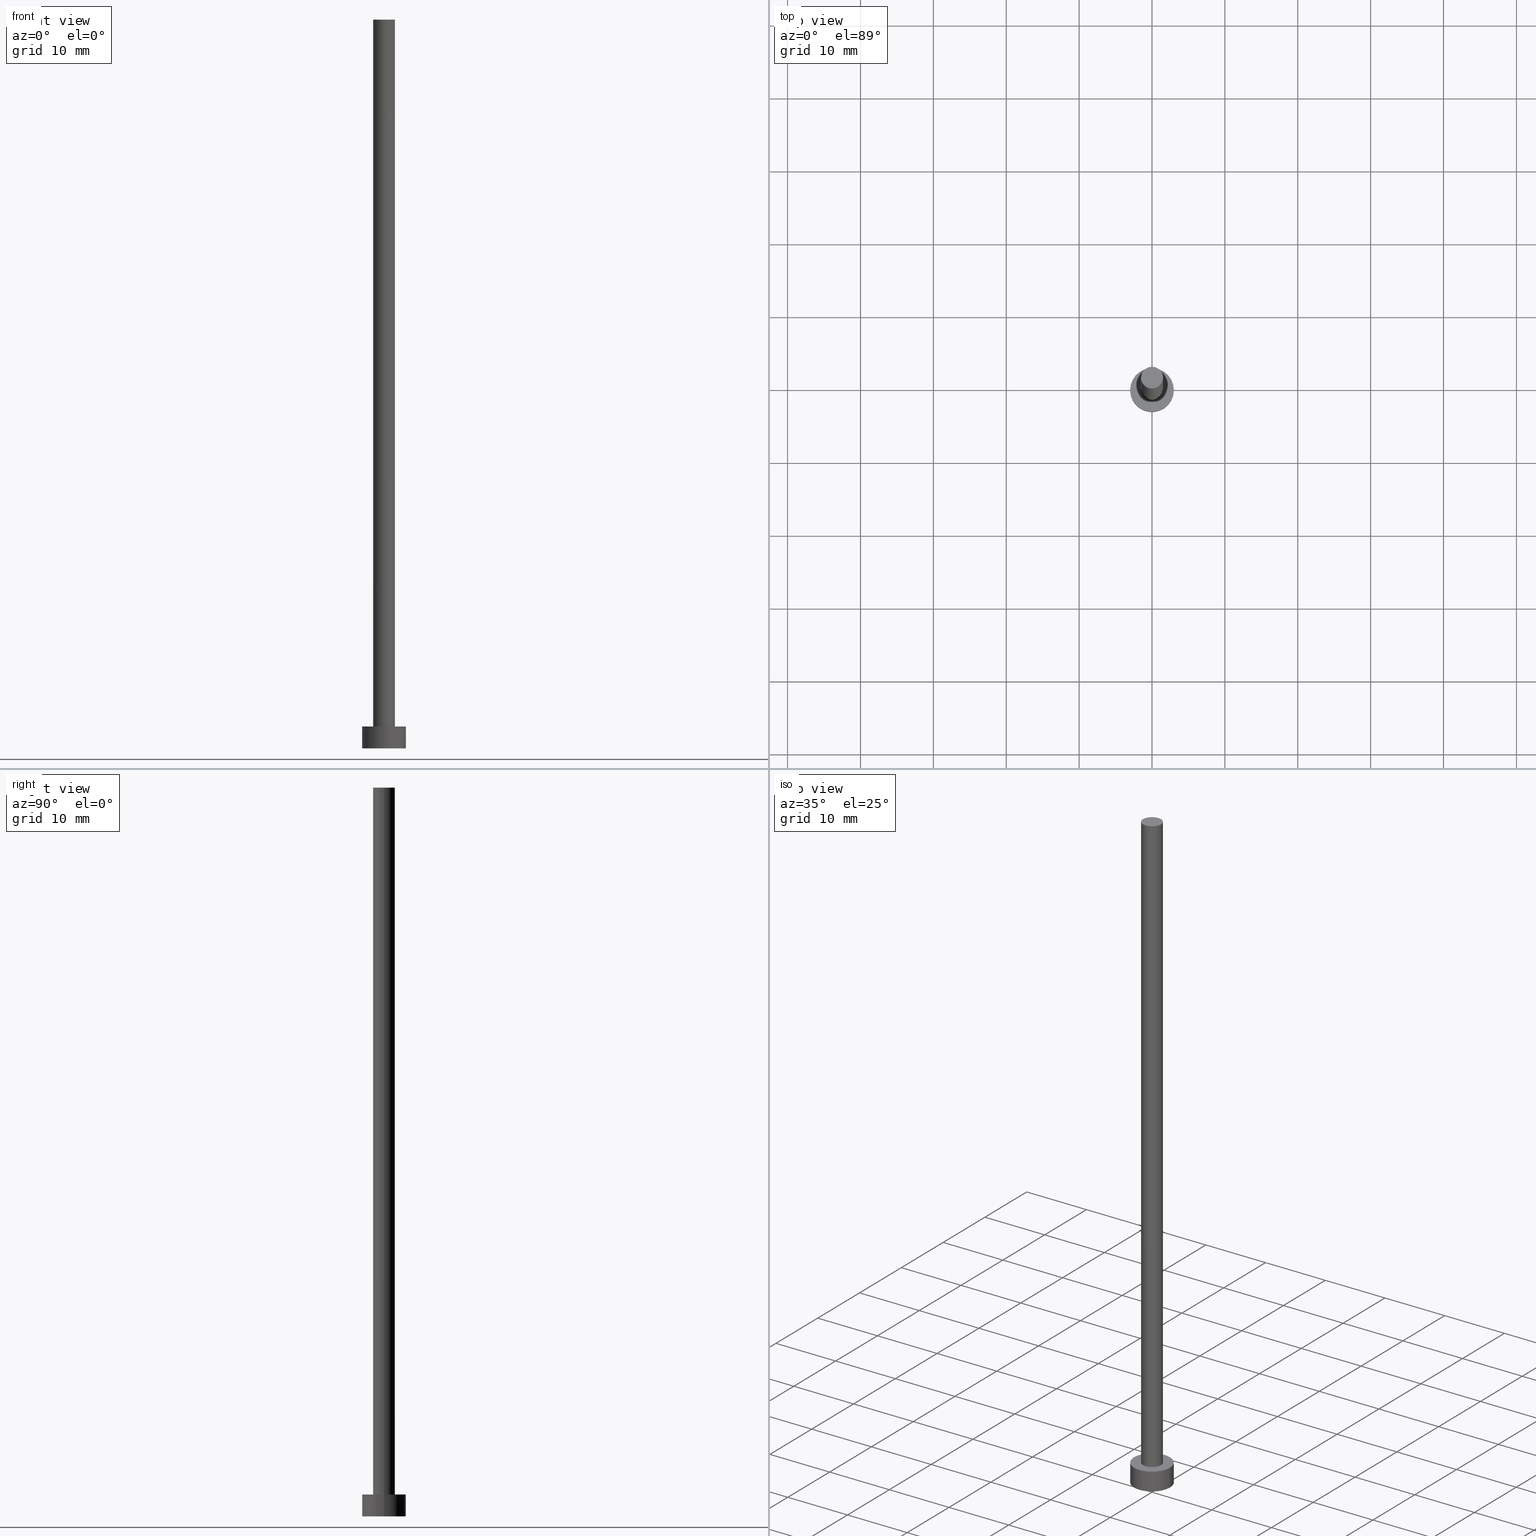
[diagram: canonical four-view strip — front | top / right | iso, engineering-drawing reading convention]
A machine part, canonical four-view strip (front | top / right | iso — engineering-drawing reading convention). The complete STEP part file that produces these views, byte-faithful:
ISO-10303-21;
HEADER;
FILE_DESCRIPTION (( 'STEP AP203' ),
    '1' );
FILE_NAME ('094d.STEP',
    '2023-02-12T12:47:52',
    ( '' ),
    ( '' ),
    'SwSTEP 2.0',
    'SolidWorks 2019',
    '' );
FILE_SCHEMA (( 'CONFIG_CONTROL_DESIGN' ));
ENDSEC;

DATA;
#1 = DIRECTION ( 'NONE',  ( -0.000000000000000000, -0.000000000000000000, -1.000000000000000000 ) ) ;
#2 = DIRECTION ( 'NONE',  ( -0.000000000000000000, -0.000000000000000000, -1.000000000000000000 ) ) ;
#3 = CARTESIAN_POINT ( 'NONE',  ( 1.500000000000000222, 1.836970198721029934E-16, 3.000000000000000000 ) ) ;
#4 = CARTESIAN_POINT ( 'NONE',  ( 0.000000000000000000, 0.000000000000000000, 100.0000000000000000 ) ) ;
#5 = DIRECTION ( 'NONE',  ( -1.000000000000000000, 0.000000000000000000, 0.000000000000000000 ) ) ;
#6 = ORIENTED_EDGE ( 'NONE', *, *, #250, .T. ) ;
#7 = VERTEX_POINT ( 'NONE', #3 ) ;
#8 = CC_DESIGN_DATE_AND_TIME_ASSIGNMENT ( #37, #108, ( #140 ) ) ;
#9 = ORIENTED_EDGE ( 'NONE', *, *, #158, .F. ) ;
#10 = AXIS2_PLACEMENT_3D ( 'NONE', #21, #99, #254 ) ;
#11 = ORIENTED_EDGE ( 'NONE', *, *, #66, .F. ) ;
#12 = PERSON_AND_ORGANIZATION ( #170, #155 ) ;
#13 = APPROVAL_PERSON_ORGANIZATION ( #50, #130, #215 ) ;
#14 = EDGE_CURVE ( 'NONE', #147, #7, #214, .T. ) ;
#15 = DATE_AND_TIME ( #134, #142 ) ;
#16 = LOCAL_TIME ( 13, 47, 52.00000000000000000, #55 ) ;
#17 = DIRECTION ( 'NONE',  ( 1.000000000000000000, 0.000000000000000000, 0.000000000000000000 ) ) ;
#18 = EDGE_CURVE ( 'NONE', #7, #166, #221, .T. ) ;
#19 = CARTESIAN_POINT ( 'NONE',  ( 1.500000000000000222, 1.836970198721029934E-16, 100.0000000000000000 ) ) ;
#20 = CIRCLE ( 'NONE', #252, 3.000000000000000444 ) ;
#21 = CARTESIAN_POINT ( 'NONE',  ( 0.000000000000000000, 0.000000000000000000, 3.000000000000000000 ) ) ;
#22 = FACE_OUTER_BOUND ( 'NONE', #105, .T. ) ;
#23 = PLANE ( 'NONE',  #40 ) ;
#24 = DIRECTION ( 'NONE',  ( 0.000000000000000000, 0.000000000000000000, 1.000000000000000000 ) ) ;
#25 = CARTESIAN_POINT ( 'NONE',  ( 0.000000000000000000, 0.000000000000000000, 100.0000000000000000 ) ) ;
#26 = CIRCLE ( 'NONE', #253, 3.000000000000000444 ) ;
#27 = DIRECTION ( 'NONE',  ( -0.000000000000000000, -0.000000000000000000, -1.000000000000000000 ) ) ;
#28 = ADVANCED_FACE ( 'NONE', ( #67 ), #183, .T. ) ;
#29 = DIRECTION ( 'NONE',  ( -1.000000000000000000, 0.000000000000000000, 0.000000000000000000 ) ) ;
#30 = EDGE_LOOP ( 'NONE', ( #39, #35 ) ) ;
#31 = ORIENTED_EDGE ( 'NONE', *, *, #172, .F. ) ;
#32 = ORIENTED_EDGE ( 'NONE', *, *, #77, .T. ) ;
#33 = CALENDAR_DATE ( 2023, 12, 2 ) ;
#34 = VECTOR ( 'NONE', #150, 1000.000000000000000 ) ;
#35 = ORIENTED_EDGE ( 'NONE', *, *, #104, .F. ) ;
#36 = LOCAL_TIME ( 13, 47, 52.00000000000000000, #78 ) ;
#37 = DATE_AND_TIME ( #89, #36 ) ;
#38 = APPROVAL ( #209, 'NEUR�EN�' ) ;
#39 = ORIENTED_EDGE ( 'NONE', *, *, #159, .F. ) ;
#40 = AXIS2_PLACEMENT_3D ( 'NONE', #135, #156, #157 ) ;
#41 = PRODUCT ( '094d', '094d', '', ( #237 ) ) ;
#42 = CC_DESIGN_PERSON_AND_ORGANIZATION_ASSIGNMENT ( #12, #245, ( #140 ) ) ;
#43 = DIRECTION ( 'NONE',  ( 0.000000000000000000, 0.000000000000000000, 1.000000000000000000 ) ) ;
#44 = CARTESIAN_POINT ( 'NONE',  ( 0.000000000000000000, 0.000000000000000000, 3.000000000000000000 ) ) ;
#45 = ADVANCED_FACE ( 'NONE', ( #68 ), #23, .F. ) ;
#46 = PERSON_AND_ORGANIZATION_ROLE ( 'design_owner' ) ;
#47 = CARTESIAN_POINT ( 'NONE',  ( 3.000000000000000444, 3.673940397442060361E-16, 3.000000000000000000 ) ) ;
#48 = CC_DESIGN_PERSON_AND_ORGANIZATION_ASSIGNMENT ( #227, #220, ( #154 ) ) ;
#49 = AXIS2_PLACEMENT_3D ( 'NONE', #71, #136, #182 ) ;
#50 = PERSON_AND_ORGANIZATION ( #170, #155 ) ;
#51 = APPLICATION_CONTEXT ( 'configuration controlled 3d designs of mechanical parts and assemblies' ) ;
#52 = DATE_TIME_ROLE ( 'creation_date' ) ;
#53 = AXIS2_PLACEMENT_3D ( 'NONE', #61, #65, #110 ) ;
#54 = CC_DESIGN_SECURITY_CLASSIFICATION ( #140, ( #107 ) ) ;
#55 = COORDINATED_UNIVERSAL_TIME_OFFSET ( 1, 0, .AHEAD. ) ;
#56 = ORIENTED_EDGE ( 'NONE', *, *, #92, .F. ) ;
#57 = DATE_AND_TIME ( #33, #123 ) ;
#58 = CIRCLE ( 'NONE', #53, 3.000000000000000444 ) ;
#59 = ORIENTED_EDGE ( 'NONE', *, *, #159, .T. ) ;
#60 = SHAPE_DEFINITION_REPRESENTATION ( #173, #125 ) ;
#61 = CARTESIAN_POINT ( 'NONE',  ( 0.000000000000000000, 0.000000000000000000, 0.000000000000000000 ) ) ;
#62 = CC_DESIGN_DATE_AND_TIME_ASSIGNMENT ( #57, #52, ( #154 ) ) ;
#63 = CARTESIAN_POINT ( 'NONE',  ( -1.500000000000000222, 0.000000000000000000, 3.000000000000000000 ) ) ;
#64 = AXIS2_PLACEMENT_3D ( 'NONE', #184, #24, #255 ) ;
#65 = DIRECTION ( 'NONE',  ( 0.000000000000000000, 0.000000000000000000, 1.000000000000000000 ) ) ;
#66 = EDGE_CURVE ( 'NONE', #186, #166, #216, .T. ) ;
#67 = FACE_OUTER_BOUND ( 'NONE', #129, .T. ) ;
#68 = FACE_OUTER_BOUND ( 'NONE', #30, .T. ) ;
#69 = APPROVAL_STATUS ( 'not_yet_approved' ) ;
#70 = CARTESIAN_POINT ( 'NONE',  ( 0.000000000000000000, 0.000000000000000000, 100.0000000000000000 ) ) ;
#71 = CARTESIAN_POINT ( 'NONE',  ( 0.000000000000000000, 0.000000000000000000, 100.0000000000000000 ) ) ;
#72 = LINE ( 'NONE', #47, #94 ) ;
#73 = ORIENTED_EDGE ( 'NONE', *, *, #92, .T. ) ;
#74 = CALENDAR_DATE ( 2023, 12, 2 ) ;
#75 = ORIENTED_EDGE ( 'NONE', *, *, #158, .T. ) ;
#76 = EDGE_LOOP ( 'NONE', ( #31, #143 ) ) ;
#77 = EDGE_CURVE ( 'NONE', #188, #127, #72, .T. ) ;
#78 = COORDINATED_UNIVERSAL_TIME_OFFSET ( 1, 0, .AHEAD. ) ;
#79 = DIRECTION ( 'NONE',  ( 1.000000000000000000, 0.000000000000000000, -0.000000000000000000 ) ) ;
#80 = COORDINATED_UNIVERSAL_TIME_OFFSET ( 1, 0, .AHEAD. ) ;
#81 = DIRECTION ( 'NONE',  ( 1.000000000000000000, 0.000000000000000000, 0.000000000000000000 ) ) ;
#82 = CARTESIAN_POINT ( 'NONE',  ( 0.000000000000000000, 0.000000000000000000, 100.0000000000000000 ) ) ;
#83 = DIRECTION ( 'NONE',  ( 0.000000000000000000, 0.000000000000000000, 1.000000000000000000 ) ) ;
#84 = APPLICATION_PROTOCOL_DEFINITION ( 'international standard', 'config_control_design', 1994, #51 ) ;
#85 = APPROVAL ( #122, 'NEUR�EN�' ) ;
#86 = DIRECTION ( 'NONE',  ( 0.000000000000000000, 0.000000000000000000, 1.000000000000000000 ) ) ;
#87 =( NAMED_UNIT ( * ) SI_UNIT ( $, .STERADIAN. ) SOLID_ANGLE_UNIT ( ) );
#88 =( LENGTH_UNIT ( ) NAMED_UNIT ( * ) SI_UNIT ( .MILLI., .METRE. ) );
#89 = CALENDAR_DATE ( 2023, 12, 2 ) ;
#90 = APPROVAL_DATE_TIME ( #128, #85 ) ;
#91 = ADVANCED_FACE ( 'NONE', ( #234 ), #218, .T. ) ;
#92 = EDGE_CURVE ( 'NONE', #188, #222, #210, .T. ) ;
#93 = ORIENTED_EDGE ( 'NONE', *, *, #103, .F. ) ;
#94 = VECTOR ( 'NONE', #1, 1000.000000000000000 ) ;
#95 = FACE_BOUND ( 'NONE', #76, .T. ) ;
#96 = PERSON_AND_ORGANIZATION ( #170, #155 ) ;
#97 = CIRCLE ( 'NONE', #190, 1.500000000000000222 ) ;
#98 = APPLICATION_CONTEXT ( 'configuration controlled 3d designs of mechanical parts and assemblies' ) ;
#99 = DIRECTION ( 'NONE',  ( 0.000000000000000000, 0.000000000000000000, 1.000000000000000000 ) ) ;
#100 = CYLINDRICAL_SURFACE ( 'NONE', #153, 3.000000000000000444 ) ;
#101 = CARTESIAN_POINT ( 'NONE',  ( -1.500000000000000222, 0.000000000000000000, 100.0000000000000000 ) ) ;
#102 = CARTESIAN_POINT ( 'NONE',  ( 0.000000000000000000, 0.000000000000000000, 3.000000000000000000 ) ) ;
#103 = EDGE_CURVE ( 'NONE', #186, #147, #97, .T. ) ;
#104 = EDGE_CURVE ( 'NONE', #127, #226, #20, .T. ) ;
#105 = EDGE_LOOP ( 'NONE', ( #241, #146, #75, #59 ) ) ;
#106 = EDGE_LOOP ( 'NONE', ( #208, #6 ) ) ;
#107 = PRODUCT_DEFINITION_FORMATION_WITH_SPECIFIED_SOURCE ( 'LIBOVOLN�', '', #41, .NOT_KNOWN. ) ;
#108 = DATE_TIME_ROLE ( 'classification_date' ) ;
#109 = ORIENTED_EDGE ( 'NONE', *, *, #14, .T. ) ;
#110 = DIRECTION ( 'NONE',  ( 1.000000000000000000, 0.000000000000000000, 0.000000000000000000 ) ) ;
#111 = APPROVAL_ROLE ( '' ) ;
#112 = PLANE ( 'NONE',  #139 ) ;
#113 = DIRECTION ( 'NONE',  ( -1.000000000000000000, 0.000000000000000000, 0.000000000000000000 ) ) ;
#114 = CARTESIAN_POINT ( 'NONE',  ( 3.000000000000000444, 3.673940397442060361E-16, 0.000000000000000000 ) ) ;
#115 = DIRECTION ( 'NONE',  ( 1.000000000000000000, 0.000000000000000000, 0.000000000000000000 ) ) ;
#116 = CARTESIAN_POINT ( 'NONE',  ( 0.000000000000000000, 0.000000000000000000, 3.000000000000000000 ) ) ;
#117 = DIRECTION ( 'NONE',  ( 1.000000000000000000, 0.000000000000000000, -0.000000000000000000 ) ) ;
#118 = APPROVAL_PERSON_ORGANIZATION ( #225, #85, #204 ) ;
#119 = CARTESIAN_POINT ( 'NONE',  ( -3.000000000000000444, 0.000000000000000000, 0.000000000000000000 ) ) ;
#120 = ADVANCED_FACE ( 'NONE', ( #95, #248 ), #112, .T. ) ;
#121 = CARTESIAN_POINT ( 'NONE',  ( -3.000000000000000444, 0.000000000000000000, 3.000000000000000000 ) ) ;
#122 = APPROVAL_STATUS ( 'not_yet_approved' ) ;
#123 = LOCAL_TIME ( 13, 47, 52.00000000000000000, #243 ) ;
#124 = ORIENTED_EDGE ( 'NONE', *, *, #14, .F. ) ;
#125 = ADVANCED_BREP_SHAPE_REPRESENTATION ( '094d', ( #217, #64 ), #131 ) ;
#126 = PERSON_AND_ORGANIZATION_ROLE ( 'creator' ) ;
#127 = VERTEX_POINT ( 'NONE', #114 ) ;
#128 = DATE_AND_TIME ( #187, #16 ) ;
#129 = EDGE_LOOP ( 'NONE', ( #56, #32, #228, #9 ) ) ;
#130 = APPROVAL ( #69, 'NEUR�EN�' ) ;
#131 =( GEOMETRIC_REPRESENTATION_CONTEXT ( 3 ) GLOBAL_UNCERTAINTY_ASSIGNED_CONTEXT ( ( #174 ) ) GLOBAL_UNIT_ASSIGNED_CONTEXT ( ( #88, #235, #87 ) ) REPRESENTATION_CONTEXT ( 'NONE', 'WORKASPACE' ) );
#132 = CC_DESIGN_PERSON_AND_ORGANIZATION_ASSIGNMENT ( #246, #167, ( #107 ) ) ;
#133 = DIRECTION ( 'NONE',  ( 0.000000000000000000, 0.000000000000000000, 1.000000000000000000 ) ) ;
#134 = CALENDAR_DATE ( 2023, 12, 2 ) ;
#135 = CARTESIAN_POINT ( 'NONE',  ( 0.000000000000000000, 0.000000000000000000, 0.000000000000000000 ) ) ;
#136 = DIRECTION ( 'NONE',  ( 0.000000000000000000, 0.000000000000000000, 1.000000000000000000 ) ) ;
#137 = CARTESIAN_POINT ( 'NONE',  ( 1.500000000000000222, 1.836970198721029934E-16, 100.0000000000000000 ) ) ;
#138 = DIRECTION ( 'NONE',  ( -0.000000000000000000, -0.000000000000000000, -1.000000000000000000 ) ) ;
#139 = AXIS2_PLACEMENT_3D ( 'NONE', #148, #249, #79 ) ;
#140 = SECURITY_CLASSIFICATION ( '', '', #207 ) ;
#141 = PLANE ( 'NONE',  #152 ) ;
#142 = LOCAL_TIME ( 13, 47, 52.00000000000000000, #80 ) ;
#143 = ORIENTED_EDGE ( 'NONE', *, *, #18, .F. ) ;
#144 = AXIS2_PLACEMENT_3D ( 'NONE', #44, #195, #113 ) ;
#145 = LOCAL_TIME ( 13, 47, 52.00000000000000000, #202 ) ;
#146 = ORIENTED_EDGE ( 'NONE', *, *, #224, .F. ) ;
#147 = VERTEX_POINT ( 'NONE', #19 ) ;
#148 = CARTESIAN_POINT ( 'NONE',  ( 0.000000000000000000, 0.000000000000000000, 3.000000000000000000 ) ) ;
#149 = CARTESIAN_POINT ( 'NONE',  ( -1.500000000000000222, 0.000000000000000000, 100.0000000000000000 ) ) ;
#150 = DIRECTION ( 'NONE',  ( -0.000000000000000000, -0.000000000000000000, -1.000000000000000000 ) ) ;
#151 = AXIS2_PLACEMENT_3D ( 'NONE', #70, #178, #200 ) ;
#152 = AXIS2_PLACEMENT_3D ( 'NONE', #25, #185, #117 ) ;
#153 = AXIS2_PLACEMENT_3D ( 'NONE', #199, #27, #5 ) ;
#154 = PRODUCT_DEFINITION ( 'NEZN�M�', '', #107, #232 ) ;
#155 = ORGANIZATION ( 'NEUR�EN�', 'NEUR�EN�', '' ) ;
#156 = DIRECTION ( 'NONE',  ( 0.000000000000000000, 0.000000000000000000, 1.000000000000000000 ) ) ;
#157 = DIRECTION ( 'NONE',  ( 1.000000000000000000, 0.000000000000000000, -0.000000000000000000 ) ) ;
#158 = EDGE_CURVE ( 'NONE', #222, #226, #197, .T. ) ;
#159 = EDGE_CURVE ( 'NONE', #226, #127, #58, .T. ) ;
#160 = ORIENTED_EDGE ( 'NONE', *, *, #66, .T. ) ;
#161 = PERSON_AND_ORGANIZATION ( #170, #155 ) ;
#162 = ORIENTED_EDGE ( 'NONE', *, *, #172, .T. ) ;
#163 = CC_DESIGN_APPROVAL ( #38, ( #140 ) ) ;
#164 = DATE_AND_TIME ( #74, #145 ) ;
#165 = AXIS2_PLACEMENT_3D ( 'NONE', #193, #133, #17 ) ;
#166 = VERTEX_POINT ( 'NONE', #63 ) ;
#167 = PERSON_AND_ORGANIZATION_ROLE ( 'design_supplier' ) ;
#168 = VECTOR ( 'NONE', #138, 1000.000000000000000 ) ;
#169 = APPROVAL_DATE_TIME ( #15, #38 ) ;
#170 = PERSON ( 'NEUR�EN�', 'NEUR�EN�', 'NEUR�EN�', ('NEUR�EN�'), ('NEUR�EN�'), ('NEUR�EN�') ) ;
#171 = CARTESIAN_POINT ( 'NONE',  ( 0.000000000000000000, 0.000000000000000000, 0.000000000000000000 ) ) ;
#172 = EDGE_CURVE ( 'NONE', #166, #7, #177, .T. ) ;
#173 = PRODUCT_DEFINITION_SHAPE ( 'NONE', 'NONE',  #154 ) ;
#174 = UNCERTAINTY_MEASURE_WITH_UNIT (LENGTH_MEASURE( 1.000000000000000082E-05 ), #88, 'distance_accuracy_value', 'NONE');
#175 = DIRECTION ( 'NONE',  ( 0.000000000000000000, 0.000000000000000000, 1.000000000000000000 ) ) ;
#176 = APPROVAL_PERSON_ORGANIZATION ( #96, #38, #111 ) ;
#177 = CIRCLE ( 'NONE', #165, 1.500000000000000222 ) ;
#178 = DIRECTION ( 'NONE',  ( -0.000000000000000000, -0.000000000000000000, -1.000000000000000000 ) ) ;
#179 = VECTOR ( 'NONE', #180, 1000.000000000000000 ) ;
#180 = DIRECTION ( 'NONE',  ( -0.000000000000000000, -0.000000000000000000, -1.000000000000000000 ) ) ;
#181 = CC_DESIGN_APPROVAL ( #130, ( #154 ) ) ;
#182 = DIRECTION ( 'NONE',  ( 1.000000000000000000, 0.000000000000000000, 0.000000000000000000 ) ) ;
#183 = CYLINDRICAL_SURFACE ( 'NONE', #144, 3.000000000000000444 ) ;
#184 = CARTESIAN_POINT ( 'NONE',  ( 0.000000000000000000, 0.000000000000000000, 0.000000000000000000 ) ) ;
#185 = DIRECTION ( 'NONE',  ( 0.000000000000000000, 0.000000000000000000, 1.000000000000000000 ) ) ;
#186 = VERTEX_POINT ( 'NONE', #149 ) ;
#187 = CALENDAR_DATE ( 2023, 12, 2 ) ;
#188 = VERTEX_POINT ( 'NONE', #231 ) ;
#189 = ORIENTED_EDGE ( 'NONE', *, *, #224, .T. ) ;
#190 = AXIS2_PLACEMENT_3D ( 'NONE', #82, #175, #81 ) ;
#191 = CIRCLE ( 'NONE', #49, 1.500000000000000222 ) ;
#192 = EDGE_LOOP ( 'NONE', ( #189, #73 ) ) ;
#193 = CARTESIAN_POINT ( 'NONE',  ( 0.000000000000000000, 0.000000000000000000, 3.000000000000000000 ) ) ;
#194 = FACE_OUTER_BOUND ( 'NONE', #106, .T. ) ;
#195 = DIRECTION ( 'NONE',  ( -0.000000000000000000, -0.000000000000000000, -1.000000000000000000 ) ) ;
#196 = ADVANCED_FACE ( 'NONE', ( #194 ), #141, .T. ) ;
#197 = LINE ( 'NONE', #230, #34 ) ;
#198 = CYLINDRICAL_SURFACE ( 'NONE', #201, 1.500000000000000222 ) ;
#199 = CARTESIAN_POINT ( 'NONE',  ( 0.000000000000000000, 0.000000000000000000, 3.000000000000000000 ) ) ;
#200 = DIRECTION ( 'NONE',  ( -1.000000000000000000, 0.000000000000000000, 0.000000000000000000 ) ) ;
#201 = AXIS2_PLACEMENT_3D ( 'NONE', #4, #2, #29 ) ;
#202 = COORDINATED_UNIVERSAL_TIME_OFFSET ( 1, 0, .AHEAD. ) ;
#203 = PRODUCT_RELATED_PRODUCT_CATEGORY ( 'detail', '', ( #41 ) ) ;
#204 = APPROVAL_ROLE ( '' ) ;
#205 = ORIENTED_EDGE ( 'NONE', *, *, #250, .F. ) ;
#206 = EDGE_LOOP ( 'NONE', ( #124, #93, #160, #162 ) ) ;
#207 = SECURITY_CLASSIFICATION_LEVEL ( 'unclassified' ) ;
#208 = ORIENTED_EDGE ( 'NONE', *, *, #103, .T. ) ;
#209 = APPROVAL_STATUS ( 'not_yet_approved' ) ;
#210 = CIRCLE ( 'NONE', #10, 3.000000000000000444 ) ;
#211 = DIRECTION ( 'NONE',  ( 1.000000000000000000, 0.000000000000000000, 0.000000000000000000 ) ) ;
#212 = CC_DESIGN_PERSON_AND_ORGANIZATION_ASSIGNMENT ( #233, #46, ( #41 ) ) ;
#213 = AXIS2_PLACEMENT_3D ( 'NONE', #116, #86, #236 ) ;
#214 = LINE ( 'NONE', #137, #168 ) ;
#215 = APPROVAL_ROLE ( '' ) ;
#216 = LINE ( 'NONE', #101, #179 ) ;
#217 = MANIFOLD_SOLID_BREP ( 'P�idat vysunut�m3', #240 ) ;
#218 = CYLINDRICAL_SURFACE ( 'NONE', #151, 1.500000000000000222 ) ;
#219 = APPLICATION_PROTOCOL_DEFINITION ( 'international standard', 'config_control_design', 1994, #98 ) ;
#220 = PERSON_AND_ORGANIZATION_ROLE ( 'creator' ) ;
#221 = CIRCLE ( 'NONE', #213, 1.500000000000000222 ) ;
#222 = VERTEX_POINT ( 'NONE', #121 ) ;
#223 = ORIENTED_EDGE ( 'NONE', *, *, #18, .T. ) ;
#224 = EDGE_CURVE ( 'NONE', #222, #188, #26, .T. ) ;
#225 = PERSON_AND_ORGANIZATION ( #170, #155 ) ;
#226 = VERTEX_POINT ( 'NONE', #119 ) ;
#227 = PERSON_AND_ORGANIZATION ( #170, #155 ) ;
#228 = ORIENTED_EDGE ( 'NONE', *, *, #104, .T. ) ;
#229 = APPROVAL_DATE_TIME ( #164, #130 ) ;
#230 = CARTESIAN_POINT ( 'NONE',  ( -3.000000000000000444, 0.000000000000000000, 3.000000000000000000 ) ) ;
#231 = CARTESIAN_POINT ( 'NONE',  ( 3.000000000000000444, 3.673940397442060361E-16, 3.000000000000000000 ) ) ;
#232 = DESIGN_CONTEXT ( 'detailed design', #51, 'design' ) ;
#233 = PERSON_AND_ORGANIZATION ( #170, #155 ) ;
#234 = FACE_OUTER_BOUND ( 'NONE', #206, .T. ) ;
#235 =( NAMED_UNIT ( * ) PLANE_ANGLE_UNIT ( ) SI_UNIT ( $, .RADIAN. ) );
#236 = DIRECTION ( 'NONE',  ( 1.000000000000000000, 0.000000000000000000, 0.000000000000000000 ) ) ;
#237 = MECHANICAL_CONTEXT ( 'NONE', #98, 'mechanical' ) ;
#238 = FACE_OUTER_BOUND ( 'NONE', #244, .T. ) ;
#239 = ADVANCED_FACE ( 'NONE', ( #22 ), #100, .T. ) ;
#240 = CLOSED_SHELL ( 'NONE', ( #251, #28, #239, #120, #45, #91, #196 ) ) ;
#241 = ORIENTED_EDGE ( 'NONE', *, *, #77, .F. ) ;
#242 = CC_DESIGN_APPROVAL ( #85, ( #107 ) ) ;
#243 = COORDINATED_UNIVERSAL_TIME_OFFSET ( 1, 0, .AHEAD. ) ;
#244 = EDGE_LOOP ( 'NONE', ( #205, #109, #223, #11 ) ) ;
#245 = PERSON_AND_ORGANIZATION_ROLE ( 'classification_officer' ) ;
#246 = PERSON_AND_ORGANIZATION ( #170, #155 ) ;
#247 = CC_DESIGN_PERSON_AND_ORGANIZATION_ASSIGNMENT ( #161, #126, ( #107 ) ) ;
#248 = FACE_OUTER_BOUND ( 'NONE', #192, .T. ) ;
#249 = DIRECTION ( 'NONE',  ( 0.000000000000000000, 0.000000000000000000, 1.000000000000000000 ) ) ;
#250 = EDGE_CURVE ( 'NONE', #147, #186, #191, .T. ) ;
#251 = ADVANCED_FACE ( 'NONE', ( #238 ), #198, .T. ) ;
#252 = AXIS2_PLACEMENT_3D ( 'NONE', #171, #43, #211 ) ;
#253 = AXIS2_PLACEMENT_3D ( 'NONE', #102, #83, #115 ) ;
#254 = DIRECTION ( 'NONE',  ( 1.000000000000000000, 0.000000000000000000, 0.000000000000000000 ) ) ;
#255 = DIRECTION ( 'NONE',  ( 1.000000000000000000, 0.000000000000000000, 0.000000000000000000 ) ) ;
ENDSEC;
END-ISO-10303-21;
